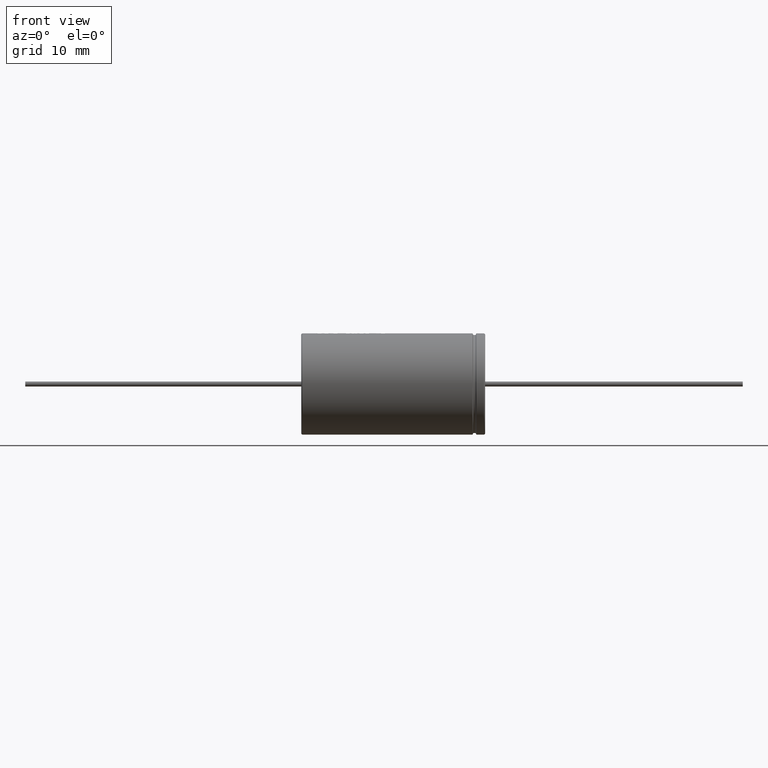
[diagram: clean part render]
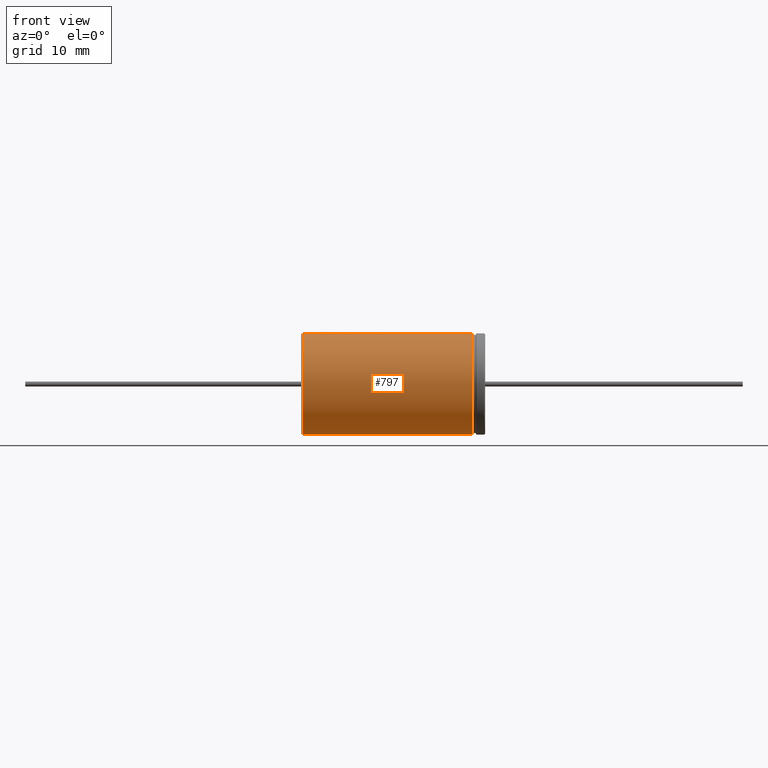
[diagram: same view with one face highlighted and labeled with its STEP entity id]
A machine part, front view. The second image highlights one B-rep face of the part: STEP entity #797.
In plain terms, the highlighted cylindrical surface (partial cylindrical patch) has radius 8.25 mm, axis along (-1, -0, -0).
Its self-contained STEP definition (entity closure, byte-faithful):
#17 = CARTESIAN_POINT ( 'NONE',  ( 8.919766118145515700, -0.4606707589694882800, 8.240348897968690500 ) ) ;
#21 = ORIENTED_EDGE ( 'NONE', *, *, #1786, .F. ) ;
#35 = DIRECTION ( 'NONE',  ( -1.000000000000000000, -0.0000000000000000000, -0.0000000000000000000 ) ) ;
#50 = CARTESIAN_POINT ( 'NONE',  ( 4.587625253583076400, -0.2303430501969473700, 8.249985712090126100 ) ) ;
#64 = VECTOR ( 'NONE', #4262, 1000.000000000000000 ) ;
#66 = B_SPLINE_CURVE_WITH_KNOTS ( 'NONE', 3,
 ( #4678, #3911, #1675, #4659 ),
 .UNSPECIFIED., .F., .F.,
 ( 4, 4 ),
 ( 0.7144272945295489000, 1.000000000000000000 ),
 .UNSPECIFIED. ) ;
#78 = CARTESIAN_POINT ( 'NONE',  ( 12.18413864561811800, -0.2305673614622813200, 8.246777473160550500 ) ) ;
#95 = CARTESIAN_POINT ( 'NONE',  ( 9.934130157072896600, -0.6902269715937691100, 8.221075764623782000 ) ) ;
#108 = VECTOR ( 'NONE', #2012, 1000.000000000000000 ) ;
#121 = CARTESIAN_POINT ( 'NONE',  ( 27.87500000000000000, 0.0000000000000000000, 0.0000000000000000000 ) ) ;
#154 = CARTESIAN_POINT ( 'NONE',  ( 12.75845298491764100, -0.6902269715937543500, 8.221075764623783800 ) ) ;
#155 = DIRECTION ( 'NONE',  ( 1.000000000000000000, 4.032799538137624500E-015, 0.0000000000000000000 ) ) ;
#163 = CARTESIAN_POINT ( 'NONE',  ( 0.2500000000000002200, 1.010333609296566500E-015, -8.250000000000000000 ) ) ;
#165 = CARTESIAN_POINT ( 'NONE',  ( 10.22533386639193700, -0.6902269715937691100, 8.221075764623782000 ) ) ;
#171 = EDGE_CURVE ( 'NONE', #448, #2322, #3681, .T. ) ;
#175 = LINE ( 'NONE', #2812, #3157 ) ;
#186 = VERTEX_POINT ( 'NONE', #2194 ) ;
#213 = VECTOR ( 'NONE', #1646, 1000.000000000000000 ) ;
#218 = CARTESIAN_POINT ( 'NONE',  ( 30.00000000000000000, 0.0000000000000000000, 8.250000000000000000 ) ) ;
#241 = CARTESIAN_POINT ( 'NONE',  ( 2.648952361300336300, -2.040274387893383400E-007, 8.249952698225598600 ) ) ;
#246 = VERTEX_POINT ( 'NONE', #3382 ) ;
#261 = EDGE_CURVE ( 'NONE', #3119, #3043, #2929, .T. ) ;
#275 = EDGE_CURVE ( 'NONE', #2799, #1824, #1015, .T. ) ;
#299 = CARTESIAN_POINT ( 'NONE',  ( 9.934130157072896600, -0.6902269715937691100, 8.221075764623782000 ) ) ;
#330 = CARTESIAN_POINT ( 'NONE',  ( 12.95713338428553000, -6.016835207277681200E-008, 8.249973829097053000 ) ) ;
#349 = B_SPLINE_CURVE_WITH_KNOTS ( 'NONE', 3,
 ( #2220, #17, #3695, #4486 ),
 .UNSPECIFIED., .F., .F.,
 ( 4, 4 ),
 ( 0.0000000000000000000, 0.3192411504329490900 ),
 .UNSPECIFIED. ) ;
#374 = CARTESIAN_POINT ( 'NONE',  ( 13.44773319490491500, -0.6902269715937543500, 8.221075764623783800 ) ) ;
#376 = VECTOR ( 'NONE', #4474, 1000.000000000000000 ) ;
#379 = EDGE_CURVE ( 'NONE', #1709, #1069, #2630, .T. ) ;
#388 = EDGE_CURVE ( 'NONE', #2765, #2581, #566, .T. ) ;
#415 = EDGE_CURVE ( 'NONE', #3232, #3240, #175, .T. ) ;
#416 = CARTESIAN_POINT ( 'NONE',  ( 4.683103742926440400, -0.4606858163384373600, 8.240347633778641900 ) ) ;
#440 = EDGE_CURVE ( 'NONE', #3625, #1162, #1623, .T. ) ;
#448 = VERTEX_POINT ( 'NONE', #615 ) ;
#473 = ORIENTED_EDGE ( 'NONE', *, *, #1922, .F. ) ;
#475 = LINE ( 'NONE', #3221, #3239 ) ;
#506 = AXIS2_PLACEMENT_3D ( 'NONE', #1003, #3288, #652 ) ;
#521 = EDGE_CURVE ( 'NONE', #3043, #905, #1683, .T. ) ;
#535 = CARTESIAN_POINT ( 'NONE',  ( 12.14058805701853000, -0.3839865717740780200, 8.242488105266929200 ) ) ;
#542 = CARTESIAN_POINT ( 'NONE',  ( 2.450360269558703700, -0.6902269715937907600, 8.221075764623778400 ) ) ;
#566 = LINE ( 'NONE', #4632, #739 ) ;
#576 = CARTESIAN_POINT ( 'NONE',  ( 11.11095042167039500, -1.390308746357675100E-010, 8.249999730860338300 ) ) ;
#584 = VERTEX_POINT ( 'NONE', #299 ) ;
#588 = EDGE_CURVE ( 'NONE', #619, #3977, #2244, .T. ) ;
#615 = CARTESIAN_POINT ( 'NONE',  ( 11.04511865939864300, -0.2305673614622886800, 8.246777473160550500 ) ) ;
#619 = VERTEX_POINT ( 'NONE', #3327 ) ;
#620 = CARTESIAN_POINT ( 'NONE',  ( 8.165998987177818700, -0.4606664065882006800, 8.240349263386921300 ) ) ;
#629 = ORIENTED_EDGE ( 'NONE', *, *, #261, .T. ) ;
#652 = DIRECTION ( 'NONE',  ( 0.0000000000000000000, 0.0000000000000000000, 1.000000000000000000 ) ) ;
#654 = EDGE_CURVE ( 'NONE', #186, #246, #822, .T. ) ;
#678 = VERTEX_POINT ( 'NONE', #2550 ) ;
#705 = CIRCLE ( 'NONE', #1611, 8.250000000000000000 ) ;
#730 = VECTOR ( 'NONE', #4536, 1000.000000000000000 ) ;
#733 = VECTOR ( 'NONE', #3640, 1000.000000000000000 ) ;
#739 = VECTOR ( 'NONE', #3575, 1000.000000000000000 ) ;
#743 = ORIENTED_EDGE ( 'NONE', *, *, #275, .F. ) ;
#746 = CARTESIAN_POINT ( 'NONE',  ( 11.11095042167039500, -1.390308746357675100E-010, 8.249999730860338300 ) ) ;
#765 = CARTESIAN_POINT ( 'NONE',  ( 11.04511865939864300, -0.2305673614622886800, 8.246777473160550500 ) ) ;
#780 = CARTESIAN_POINT ( 'NONE',  ( 7.721447949807613400, -0.4606679639884354600, 8.240349132630353100 ) ) ;
#795 = CARTESIAN_POINT ( 'NONE',  ( 9.451547322385771100, -0.2303291673829859800, 8.249954679465158600 ) ) ;
#797 = ADVANCED_FACE ( 'NONE', ( #1367 ), #4584, .T. ) ;
#822 = LINE ( 'NONE', #4008, #4636 ) ;
#824 = DIRECTION ( 'NONE',  ( 1.000000000000000000, 0.0000000000000000000, 0.0000000000000000000 ) ) ;
#848 = CARTESIAN_POINT ( 'NONE',  ( 0.2500000000000002200, 0.0000000000000000000, 8.250000000000000000 ) ) ;
#855 = CARTESIAN_POINT ( 'NONE',  ( 10.06658931763964100, -0.2303215886711342000, 8.249943361317043900 ) ) ;
#856 = EDGE_CURVE ( 'NONE', #1069, #678, #2327, .T. ) ;
#858 = CARTESIAN_POINT ( 'NONE',  ( 30.00000000000000000, 0.0000000000000000000, 8.250000000000000000 ) ) ;
#884 = EDGE_CURVE ( 'NONE', #2581, #246, #349, .T. ) ;
#905 = VERTEX_POINT ( 'NONE', #4096 ) ;
#929 = B_SPLINE_CURVE_WITH_KNOTS ( 'NONE', 3,
 ( #3890, #2341, #535, #3153 ),
 .UNSPECIFIED., .F., .F.,
 ( 4, 4 ),
 ( 0.0000000000000000000, 1.000000000000000000 ),
 .UNSPECIFIED. ) ;
#992 = CARTESIAN_POINT ( 'NONE',  ( 4.042349904458654400, -0.6902269715937817700, 8.221075764623780200 ) ) ;
#1003 = CARTESIAN_POINT ( 'NONE',  ( 30.00000000000000000, 0.0000000000000000000, 0.0000000000000000000 ) ) ;
#1015 = LINE ( 'NONE', #3413, #4022 ) ;
#1039 = AXIS2_PLACEMENT_3D ( 'NONE', #121, #1185, #3803 ) ;
#1069 = VERTEX_POINT ( 'NONE', #1642 ) ;
#1076 = CARTESIAN_POINT ( 'NONE',  ( 12.82468427484701800, -0.4606738494898976500, 8.240348638494067400 ) ) ;
#1097 = CARTESIAN_POINT ( 'NONE',  ( 4.778584689303863300, -0.6902269715937837700, 8.221075764623780200 ) ) ;
#1106 = VECTOR ( 'NONE', #35, 1000.000000000000000 ) ;
#1118 = ORIENTED_EDGE ( 'NONE', *, *, #4250, .F. ) ;
#1124 = EDGE_CURVE ( 'NONE', #4717, #3863, #3759, .T. ) ;
#1152 = CARTESIAN_POINT ( 'NONE',  ( 27.87500000000000000, 0.0000000000000000000, 8.250000000000000000 ) ) ;
#1158 = CARTESIAN_POINT ( 'NONE',  ( 10.13280839674770900, -2.041794404020853200E-007, 8.249952697900440100 ) ) ;
#1162 = VERTEX_POINT ( 'NONE', #1657 ) ;
#1179 = CARTESIAN_POINT ( 'NONE',  ( 5.247396802830460900, -2.044873033689142300E-007, 8.249952697241880600 ) ) ;
#1180 = VERTEX_POINT ( 'NONE', #4260 ) ;
#1185 = DIRECTION ( 'NONE',  ( -1.000000000000000000, -0.0000000000000000000, -0.0000000000000000000 ) ) ;
#1209 = EDGE_CURVE ( 'NONE', #3523, #448, #475, .T. ) ;
#1226 = CARTESIAN_POINT ( 'NONE',  ( 3.764970902322259100, 3.140665345664115500E-009, 8.249993344650970800 ) ) ;
#1235 = EDGE_CURVE ( 'NONE', #4667, #4142, #705, .T. ) ;
#1239 = ORIENTED_EDGE ( 'NONE', *, *, #856, .F. ) ;
#1260 = B_SPLINE_CURVE_WITH_KNOTS ( 'NONE', 3,
 ( #2987, #780, #2973, #1490 ),
 .UNSPECIFIED., .F., .F.,
 ( 4, 4 ),
 ( 0.0000000000000000000, 0.3207775540200901700 ),
 .UNSPECIFIED. ) ;
#1315 = CARTESIAN_POINT ( 'NONE',  ( 8.178910188371727200, -0.2303282209134474300, 8.249955426023346300 ) ) ;
#1342 = CARTESIAN_POINT ( 'NONE',  ( 4.042349904458654400, -0.6902269715937817700, 8.221075764623780200 ) ) ;
#1350 = CARTESIAN_POINT ( 'NONE',  ( 10.13280839674770900, -2.041794404020853200E-007, 8.249952697900440100 ) ) ;
#1359 = ORIENTED_EDGE ( 'NONE', *, *, #3114, .F. ) ;
#1365 = ORIENTED_EDGE ( 'NONE', *, *, #388, .F. ) ;
#1367 = FACE_OUTER_BOUND ( 'NONE', #1923, .T. ) ;
#1455 = CARTESIAN_POINT ( 'NONE',  ( 11.08900651105086300, -0.07686576069029831000, 8.249999597373950200 ) ) ;
#1490 = CARTESIAN_POINT ( 'NONE',  ( 7.853719569700832200, -1.090947509234515800E-007, 8.249965338413145900 ) ) ;
#1502 = ORIENTED_EDGE ( 'NONE', *, *, #440, .F. ) ;
#1507 = ORIENTED_EDGE ( 'NONE', *, *, #2228, .F. ) ;
#1552 = CARTESIAN_POINT ( 'NONE',  ( 10.00036503480312400, -0.4606583884373220400, 8.240349936576677700 ) ) ;
#1611 = AXIS2_PLACEMENT_3D ( 'NONE', #2076, #2458, #2829 ) ;
#1623 = LINE ( 'NONE', #1658, #64 ) ;
#1641 = ORIENTED_EDGE ( 'NONE', *, *, #3643, .F. ) ;
#1642 = CARTESIAN_POINT ( 'NONE',  ( 4.778584689303863300, -0.6902269715937837700, 8.221075764623780200 ) ) ;
#1646 = DIRECTION ( 'NONE',  ( 1.000000000000000000, 1.686596695041101600E-014, 0.0000000000000000000 ) ) ;
#1657 = CARTESIAN_POINT ( 'NONE',  ( 7.224603980983963500, -0.6902269715937764400, 8.221075764623782000 ) ) ;
#1658 = CARTESIAN_POINT ( 'NONE',  ( 5.048544165565341600, -0.6902269715937837700, 8.221075764623780200 ) ) ;
#1675 = CARTESIAN_POINT ( 'NONE',  ( 5.114837182492008700, -0.4606583921906659600, 8.240349936261555500 ) ) ;
#1683 = LINE ( 'NONE', #218, #733 ) ;
#1696 = CARTESIAN_POINT ( 'NONE',  ( 2.450360269558703700, -0.6902269715937907600, 8.221075764623778400 ) ) ;
#1709 = VERTEX_POINT ( 'NONE', #992 ) ;
#1723 = LINE ( 'NONE', #2593, #376 ) ;
#1742 = CARTESIAN_POINT ( 'NONE',  ( 3.204434602854049800, -0.4606855103833825100, 8.240347659466088700 ) ) ;
#1752 = CARTESIAN_POINT ( 'NONE',  ( 13.51394538818733400, -0.4606738488442764200, 8.240348638548272900 ) ) ;
#1762 = ORIENTED_EDGE ( 'NONE', *, *, #2893, .T. ) ;
#1766 = LINE ( 'NONE', #165, #4511 ) ;
#1785 = CARTESIAN_POINT ( 'NONE',  ( 12.75845298491764100, -0.6902269715937543500, 8.221075764623783800 ) ) ;
#1786 = EDGE_CURVE ( 'NONE', #2110, #3910, #1766, .T. ) ;
#1812 = CARTESIAN_POINT ( 'NONE',  ( 30.00000000000000000, 0.0000000000000000000, 8.250000000000000000 ) ) ;
#1824 = VERTEX_POINT ( 'NONE', #2709 ) ;
#1831 = ORIENTED_EDGE ( 'NONE', *, *, #379, .F. ) ;
#1850 = CARTESIAN_POINT ( 'NONE',  ( 9.517690233111123300, -1.121440179989097400E-007, 8.249964874664414100 ) ) ;
#1878 = CARTESIAN_POINT ( 'NONE',  ( 10.42410035572401800, -2.043352068930923100E-007, 8.249952697567245300 ) ) ;
#1918 = B_SPLINE_CURVE_WITH_KNOTS ( 'NONE', 3,
 ( #1878, #3758, #4523, #3081 ),
 .UNSPECIFIED., .F., .F.,
 ( 4, 4 ),
 ( 0.7144272953792758500, 1.000000000000000000 ),
 .UNSPECIFIED. ) ;
#1922 = EDGE_CURVE ( 'NONE', #2044, #2765, #2205, .T. ) ;
#1923 = EDGE_LOOP ( 'NONE', ( #3155, #629, #4563, #2000, #4735, #2890, #1762, #3905, #2207, #1641, #21, #2161, #3908, #1507, #1359, #3550, #4725, #3449, #1365, #473, #2342, #2169, #3452, #1502, #4323, #2047, #1239, #1831, #1996, #3780, #3167, #743, #1118, #2378, #3062 ) ) ;
#1996 = ORIENTED_EDGE ( 'NONE', *, *, #2325, .F. ) ;
#2000 = ORIENTED_EDGE ( 'NONE', *, *, #2450, .F. ) ;
#2006 = CARTESIAN_POINT ( 'NONE',  ( 2.582761995549668100, -0.2303215871285075600, 8.249943361715352800 ) ) ;
#2012 = DIRECTION ( 'NONE',  ( -1.000000000000000000, -0.0000000000000000000, -0.0000000000000000000 ) ) ;
#2044 = VERTEX_POINT ( 'NONE', #3686 ) ;
#2045 = DIRECTION ( 'NONE',  ( -1.000000000000000000, -0.0000000000000000000, -0.0000000000000000000 ) ) ;
#2047 = ORIENTED_EDGE ( 'NONE', *, *, #2473, .T. ) ;
#2064 = DIRECTION ( 'NONE',  ( 1.000000000000000000, 0.0000000000000000000, 0.0000000000000000000 ) ) ;
#2076 = CARTESIAN_POINT ( 'NONE',  ( 0.2500000000000002200, 0.0000000000000000000, 0.0000000000000000000 ) ) ;
#2082 = CARTESIAN_POINT ( 'NONE',  ( 8.191820741618196100, -1.142971456029781600E-008, 8.249965567787858900 ) ) ;
#2087 = LINE ( 'NONE', #2571, #1106 ) ;
#2101 = EDGE_CURVE ( 'NONE', #3977, #2464, #4227, .T. ) ;
#2110 = VERTEX_POINT ( 'NONE', #2231 ) ;
#2120 = CARTESIAN_POINT ( 'NONE',  ( 10.42410035572401800, -2.043352068930923100E-007, 8.249952697567245300 ) ) ;
#2161 = ORIENTED_EDGE ( 'NONE', *, *, #3027, .F. ) ;
#2169 = ORIENTED_EDGE ( 'NONE', *, *, #2612, .F. ) ;
#2194 = CARTESIAN_POINT ( 'NONE',  ( 9.517690233111123300, -1.121440179989097400E-007, 8.249964874664414100 ) ) ;
#2205 = B_SPLINE_CURVE_WITH_KNOTS ( 'NONE', 3,
 ( #2082, #1315, #620, #3195 ),
 .UNSPECIFIED., .F., .F.,
 ( 4, 4 ),
 ( 0.6792230329231616600, 1.000000000000000000 ),
 .UNSPECIFIED. ) ;
#2207 = ORIENTED_EDGE ( 'NONE', *, *, #1209, .F. ) ;
#2220 = CARTESIAN_POINT ( 'NONE',  ( 8.798156111622805800, -0.6902269715937691100, 8.221075764623782000 ) ) ;
#2228 = EDGE_CURVE ( 'NONE', #584, #3240, #4582, .T. ) ;
#2231 = CARTESIAN_POINT ( 'NONE',  ( 10.22533386639193700, -0.6902269715937691100, 8.221075764623782000 ) ) ;
#2244 = B_SPLINE_CURVE_WITH_KNOTS ( 'NONE', 3,
 ( #330, #3990, #1076, #3654 ),
 .UNSPECIFIED., .F., .F.,
 ( 4, 4 ),
 ( 0.6460816708775798400, 1.000000000000000000 ),
 .UNSPECIFIED. ) ;
#2253 = CARTESIAN_POINT ( 'NONE',  ( 7.853719569700832200, -1.090947509234515800E-007, 8.249965338413145900 ) ) ;
#2272 = B_SPLINE_CURVE_WITH_KNOTS ( 'NONE', 3,
 ( #1850, #795, #4472, #3729 ),
 .UNSPECIFIED., .F., .F.,
 ( 4, 4 ),
 ( 0.6807600417059137500, 1.000000000000000000 ),
 .UNSPECIFIED. ) ;
#2315 = EDGE_CURVE ( 'NONE', #4182, #4667, #2433, .T. ) ;
#2318 = CARTESIAN_POINT ( 'NONE',  ( 7.655302948734274100, -0.6902269715937691100, 8.221075764623782000 ) ) ;
#2322 = VERTEX_POINT ( 'NONE', #576 ) ;
#2325 = EDGE_CURVE ( 'NONE', #4717, #1709, #2729, .T. ) ;
#2327 = B_SPLINE_CURVE_WITH_KNOTS ( 'NONE', 3,
 ( #1097, #416, #50, #2984 ),
 .UNSPECIFIED., .F., .F.,
 ( 4, 4 ),
 ( 0.0000000000000000000, 0.5259696603913501800 ),
 .UNSPECIFIED. ) ;
#2339 = CARTESIAN_POINT ( 'NONE',  ( 30.00000000000000000, 0.0000000000000000000, 8.250000000000000000 ) ) ;
#2341 = CARTESIAN_POINT ( 'NONE',  ( 12.09703750430132100, -0.5372859039067911000, 8.233916425992717300 ) ) ;
#2342 = ORIENTED_EDGE ( 'NONE', *, *, #3541, .T. ) ;
#2378 = ORIENTED_EDGE ( 'NONE', *, *, #2315, .T. ) ;
#2388 = CARTESIAN_POINT ( 'NONE',  ( 3.764970902322259100, 3.140665345664115500E-009, 8.249993344650970800 ) ) ;
#2433 = LINE ( 'NONE', #2339, #108 ) ;
#2441 = DIRECTION ( 'NONE',  ( -1.000000000000000000, -0.0000000000000000000, -0.0000000000000000000 ) ) ;
#2443 = CARTESIAN_POINT ( 'NONE',  ( 8.153086186862863000, -0.6902269715937691100, 8.221075764623782000 ) ) ;
#2450 = EDGE_CURVE ( 'NONE', #2464, #905, #3794, .T. ) ;
#2458 = DIRECTION ( 'NONE',  ( 1.000000000000000000, 0.0000000000000000000, 0.0000000000000000000 ) ) ;
#2464 = VERTEX_POINT ( 'NONE', #4759 ) ;
#2473 = EDGE_CURVE ( 'NONE', #3095, #678, #2087, .T. ) ;
#2499 = VECTOR ( 'NONE', #2064, 1000.000000000000000 ) ;
#2505 = EDGE_CURVE ( 'NONE', #186, #1180, #2272, .T. ) ;
#2530 = DIRECTION ( 'NONE',  ( -1.000000000000000000, -0.0000000000000000000, -0.0000000000000000000 ) ) ;
#2550 = CARTESIAN_POINT ( 'NONE',  ( 4.492146628738978200, 3.316005184415132800E-009, 8.249993342761177600 ) ) ;
#2571 = CARTESIAN_POINT ( 'NONE',  ( 30.00000000000000000, 0.0000000000000000000, 8.250000000000000000 ) ) ;
#2581 = VERTEX_POINT ( 'NONE', #4421 ) ;
#2593 = CARTESIAN_POINT ( 'NONE',  ( 30.00000000000000000, 1.010333609296566500E-015, -8.250000000000000000 ) ) ;
#2612 = EDGE_CURVE ( 'NONE', #3964, #2996, #1260, .T. ) ;
#2630 = LINE ( 'NONE', #3940, #2499 ) ;
#2638 = CARTESIAN_POINT ( 'NONE',  ( 12.05348691570173300, -0.6902269715937617800, 8.221075764623782000 ) ) ;
#2708 = EDGE_CURVE ( 'NONE', #1162, #3964, #4229, .T. ) ;
#2709 = CARTESIAN_POINT ( 'NONE',  ( 3.138411801012507100, -0.6902269715937909800, 8.221075764623780200 ) ) ;
#2729 = B_SPLINE_CURVE_WITH_KNOTS ( 'NONE', 3,
 ( #2388, #3088, #3562, #1342 ),
 .UNSPECIFIED., .F., .F.,
 ( 4, 4 ),
 ( 0.4740303379863712900, 1.000000000000000000 ),
 .UNSPECIFIED. ) ;
#2765 = VERTEX_POINT ( 'NONE', #2443 ) ;
#2799 = VERTEX_POINT ( 'NONE', #1696 ) ;
#2812 = CARTESIAN_POINT ( 'NONE',  ( 30.00000000000000000, 0.0000000000000000000, 8.250000000000000000 ) ) ;
#2829 = DIRECTION ( 'NONE',  ( 0.0000000000000000000, 0.0000000000000000000, -1.000000000000000000 ) ) ;
#2890 = ORIENTED_EDGE ( 'NONE', *, *, #588, .F. ) ;
#2893 = EDGE_CURVE ( 'NONE', #619, #2322, #3674, .T. ) ;
#2927 = CARTESIAN_POINT ( 'NONE',  ( 3.336476637829846900, 1.741093252861578000E-009, 8.249993359719828900 ) ) ;
#2929 = CIRCLE ( 'NONE', #1039, 8.250000000000000000 ) ;
#2973 = CARTESIAN_POINT ( 'NONE',  ( 7.787585307715791500, -0.2303294376654971800, 8.249955123341960600 ) ) ;
#2984 = CARTESIAN_POINT ( 'NONE',  ( 4.492146628738978200, 3.316005184415132800E-009, 8.249993342761177600 ) ) ;
#2987 = CARTESIAN_POINT ( 'NONE',  ( 7.655302948734274100, -0.6902269715937691100, 8.221075764623782000 ) ) ;
#2996 = VERTEX_POINT ( 'NONE', #2253 ) ;
#3027 = EDGE_CURVE ( 'NONE', #3232, #2110, #1918, .T. ) ;
#3043 = VERTEX_POINT ( 'NONE', #1152 ) ;
#3062 = ORIENTED_EDGE ( 'NONE', *, *, #1235, .T. ) ;
#3081 = CARTESIAN_POINT ( 'NONE',  ( 10.22533386639193700, -0.6902269715937691100, 8.221075764623782000 ) ) ;
#3088 = CARTESIAN_POINT ( 'NONE',  ( 3.857429857776469600, -0.2303430346955462100, 8.249985716136075500 ) ) ;
#3095 = VERTEX_POINT ( 'NONE', #1179 ) ;
#3114 = EDGE_CURVE ( 'NONE', #1180, #584, #4424, .T. ) ;
#3119 = VERTEX_POINT ( 'NONE', #4757 ) ;
#3153 = CARTESIAN_POINT ( 'NONE',  ( 12.18413864561811800, -0.2305673614622813200, 8.246777473160550500 ) ) ;
#3155 = ORIENTED_EDGE ( 'NONE', *, *, #3949, .F. ) ;
#3157 = VECTOR ( 'NONE', #2441, 1000.000000000000000 ) ;
#3167 = ORIENTED_EDGE ( 'NONE', *, *, #3297, .F. ) ;
#3195 = CARTESIAN_POINT ( 'NONE',  ( 8.153086186862863000, -0.6902269715937691100, 8.221075764623782000 ) ) ;
#3201 = VECTOR ( 'NONE', #3418, 1000.000000000000000 ) ;
#3221 = CARTESIAN_POINT ( 'NONE',  ( 12.18413864561811800, -0.2305673614622813200, 8.246777473160550500 ) ) ;
#3232 = VERTEX_POINT ( 'NONE', #2120 ) ;
#3239 = VECTOR ( 'NONE', #3557, 1000.000000000000000 ) ;
#3240 = VERTEX_POINT ( 'NONE', #1350 ) ;
#3275 = CARTESIAN_POINT ( 'NONE',  ( 13.58015179243798600, -0.2303341439387353300, 8.249963469608790200 ) ) ;
#3288 = DIRECTION ( 'NONE',  ( -1.000000000000000000, -0.0000000000000000000, -0.0000000000000000000 ) ) ;
#3297 = EDGE_CURVE ( 'NONE', #1824, #3863, #3652, .T. ) ;
#3321 = B_SPLINE_CURVE_WITH_KNOTS ( 'NONE', 3,
 ( #241, #2006, #4601, #542 ),
 .UNSPECIFIED., .F., .F.,
 ( 4, 4 ),
 ( 0.7144272970986205200, 1.000000000000000000 ),
 .UNSPECIFIED. ) ;
#3327 = CARTESIAN_POINT ( 'NONE',  ( 12.95713338428553000, -6.016835207277681200E-008, 8.249973829097053000 ) ) ;
#3382 = CARTESIAN_POINT ( 'NONE',  ( 9.162956695892271200, -3.092285029584844700E-007, 8.249964410197906200 ) ) ;
#3413 = CARTESIAN_POINT ( 'NONE',  ( 2.450360269558703700, -0.6902269715937909800, 8.221075764623780200 ) ) ;
#3418 = DIRECTION ( 'NONE',  ( -1.000000000000000000, -0.0000000000000000000, -0.0000000000000000000 ) ) ;
#3449 = ORIENTED_EDGE ( 'NONE', *, *, #884, .F. ) ;
#3452 = ORIENTED_EDGE ( 'NONE', *, *, #2708, .F. ) ;
#3477 = CARTESIAN_POINT ( 'NONE',  ( 7.224603980983963500, -0.6902269715937764400, 8.221075764623782000 ) ) ;
#3523 = VERTEX_POINT ( 'NONE', #78 ) ;
#3541 = EDGE_CURVE ( 'NONE', #2044, #2996, #3829, .T. ) ;
#3550 = ORIENTED_EDGE ( 'NONE', *, *, #2505, .F. ) ;
#3557 = DIRECTION ( 'NONE',  ( -1.000000000000000000, -6.448938392178403600E-015, 0.0000000000000000000 ) ) ;
#3562 = CARTESIAN_POINT ( 'NONE',  ( 3.949888680844222400, -0.4606857822441157700, 8.240347636641141400 ) ) ;
#3575 = DIRECTION ( 'NONE',  ( 1.000000000000000000, 0.0000000000000000000, 0.0000000000000000000 ) ) ;
#3608 = DIRECTION ( 'NONE',  ( -1.000000000000000000, -0.0000000000000000000, -0.0000000000000000000 ) ) ;
#3625 = VERTEX_POINT ( 'NONE', #4585 ) ;
#3640 = DIRECTION ( 'NONE',  ( -1.000000000000000000, -0.0000000000000000000, -0.0000000000000000000 ) ) ;
#3643 = EDGE_CURVE ( 'NONE', #3910, #3523, #929, .T. ) ;
#3652 = B_SPLINE_CURVE_WITH_KNOTS ( 'NONE', 3,
 ( #3971, #1742, #4038, #2927 ),
 .UNSPECIFIED., .F., .F.,
 ( 4, 4 ),
 ( 0.0000000000000000000, 0.5259696749472333500 ),
 .UNSPECIFIED. ) ;
#3654 = CARTESIAN_POINT ( 'NONE',  ( 12.75845298491764100, -0.6902269715937543500, 8.221075764623783800 ) ) ;
#3674 = LINE ( 'NONE', #1812, #3787 ) ;
#3681 = B_SPLINE_CURVE_WITH_KNOTS ( 'NONE', 3,
 ( #765, #4404, #1455, #746 ),
 .UNSPECIFIED., .F., .F.,
 ( 4, 4 ),
 ( 0.0000000000000000000, 0.3834973382885075700 ),
 .UNSPECIFIED. ) ;
#3686 = CARTESIAN_POINT ( 'NONE',  ( 8.191820741618196100, -1.142971456029781600E-008, 8.249965567787858900 ) ) ;
#3695 = CARTESIAN_POINT ( 'NONE',  ( 9.041363903248015500, -0.2303316176481608700, 8.249954068656935000 ) ) ;
#3729 = CARTESIAN_POINT ( 'NONE',  ( 9.319247418248760800, -0.6902269715937691100, 8.221075764623782000 ) ) ;
#3758 = CARTESIAN_POINT ( 'NONE',  ( 10.35785186274727100, -0.2303215902519140400, 8.249943360908883200 ) ) ;
#3759 = LINE ( 'NONE', #3893, #3867 ) ;
#3780 = ORIENTED_EDGE ( 'NONE', *, *, #1124, .T. ) ;
#3781 = CARTESIAN_POINT ( 'NONE',  ( 9.319247418248760800, -0.6902269715937691100, 8.221075764623782000 ) ) ;
#3787 = VECTOR ( 'NONE', #3608, 1000.000000000000000 ) ;
#3794 = B_SPLINE_CURVE_WITH_KNOTS ( 'NONE', 3,
 ( #374, #1752, #3275, #3997 ),
 .UNSPECIFIED., .F., .F.,
 ( 4, 4 ),
 ( 0.0000000000000000000, 0.3539183289281714900 ),
 .UNSPECIFIED. ) ;
#3803 = DIRECTION ( 'NONE',  ( 0.0000000000000000000, 0.0000000000000000000, -1.000000000000000000 ) ) ;
#3829 = LINE ( 'NONE', #858, #3201 ) ;
#3863 = VERTEX_POINT ( 'NONE', #4032 ) ;
#3867 = VECTOR ( 'NONE', #2045, 1000.000000000000000 ) ;
#3890 = CARTESIAN_POINT ( 'NONE',  ( 12.05348691570173300, -0.6902269715937617800, 8.221075764623782000 ) ) ;
#3893 = CARTESIAN_POINT ( 'NONE',  ( 30.00000000000000000, 0.0000000000000000000, 8.250000000000000000 ) ) ;
#3905 = ORIENTED_EDGE ( 'NONE', *, *, #171, .F. ) ;
#3908 = ORIENTED_EDGE ( 'NONE', *, *, #415, .T. ) ;
#3910 = VERTEX_POINT ( 'NONE', #2638 ) ;
#3911 = CARTESIAN_POINT ( 'NONE',  ( 5.181119596495362200, -0.2303215917955370700, 8.249943360510318500 ) ) ;
#3940 = CARTESIAN_POINT ( 'NONE',  ( 4.042349904458654400, -0.6902269715937837700, 8.221075764623780200 ) ) ;
#3949 = EDGE_CURVE ( 'NONE', #3119, #4142, #1723, .T. ) ;
#3964 = VERTEX_POINT ( 'NONE', #2318 ) ;
#3971 = CARTESIAN_POINT ( 'NONE',  ( 3.138411801012507100, -0.6902269715937909800, 8.221075764623780200 ) ) ;
#3977 = VERTEX_POINT ( 'NONE', #154 ) ;
#3990 = CARTESIAN_POINT ( 'NONE',  ( 12.89090977431150600, -0.2303341444114807800, 8.249963469493847500 ) ) ;
#3997 = CARTESIAN_POINT ( 'NONE',  ( 13.64635630766555600, -6.013810065349459900E-008, 8.249973829178140200 ) ) ;
#4008 = CARTESIAN_POINT ( 'NONE',  ( 30.00000000000000000, 0.0000000000000000000, 8.250000000000000000 ) ) ;
#4022 = VECTOR ( 'NONE', #824, 1000.000000000000000 ) ;
#4032 = CARTESIAN_POINT ( 'NONE',  ( 3.336476637829846900, 1.741093252861578000E-009, 8.249993359719828900 ) ) ;
#4038 = CARTESIAN_POINT ( 'NONE',  ( 3.270455569741769400, -0.2303429110922271500, 8.249985748397637800 ) ) ;
#4096 = CARTESIAN_POINT ( 'NONE',  ( 13.64635630766555600, -6.013810065349459900E-008, 8.249973829178140200 ) ) ;
#4142 = VERTEX_POINT ( 'NONE', #163 ) ;
#4182 = VERTEX_POINT ( 'NONE', #4634 ) ;
#4227 = LINE ( 'NONE', #1785, #4278 ) ;
#4229 = LINE ( 'NONE', #3477, #213 ) ;
#4250 = EDGE_CURVE ( 'NONE', #4182, #2799, #3321, .T. ) ;
#4260 = CARTESIAN_POINT ( 'NONE',  ( 9.319247418248760800, -0.6902269715937691100, 8.221075764623782000 ) ) ;
#4262 = DIRECTION ( 'NONE',  ( 1.000000000000000000, 3.388038656227435200E-015, 7.971855661711611900E-016 ) ) ;
#4278 = VECTOR ( 'NONE', #4396, 1000.000000000000000 ) ;
#4318 = EDGE_CURVE ( 'NONE', #3095, #3625, #66, .T. ) ;
#4323 = ORIENTED_EDGE ( 'NONE', *, *, #4318, .F. ) ;
#4396 = DIRECTION ( 'NONE',  ( 1.000000000000000000, 0.0000000000000000000, 0.0000000000000000000 ) ) ;
#4404 = CARTESIAN_POINT ( 'NONE',  ( 11.06706259526741600, -0.1537315369010777400, 8.248925686010057500 ) ) ;
#4421 = CARTESIAN_POINT ( 'NONE',  ( 8.798156111622805800, -0.6902269715937691100, 8.221075764623782000 ) ) ;
#4424 = LINE ( 'NONE', #3781, #730 ) ;
#4472 = CARTESIAN_POINT ( 'NONE',  ( 9.385401244454111900, -0.4606676300013899900, 8.240349160671314600 ) ) ;
#4474 = DIRECTION ( 'NONE',  ( -1.000000000000000000, -0.0000000000000000000, -0.0000000000000000000 ) ) ;
#4486 = CARTESIAN_POINT ( 'NONE',  ( 9.162956695892271200, -3.092285029584844700E-007, 8.249964410197906200 ) ) ;
#4511 = VECTOR ( 'NONE', #155, 1000.000000000000000 ) ;
#4523 = CARTESIAN_POINT ( 'NONE',  ( 10.29159816404824200, -0.4606583903363074600, 8.240349936417242600 ) ) ;
#4536 = DIRECTION ( 'NONE',  ( 1.000000000000000000, 0.0000000000000000000, 0.0000000000000000000 ) ) ;
#4563 = ORIENTED_EDGE ( 'NONE', *, *, #521, .T. ) ;
#4582 = B_SPLINE_CURVE_WITH_KNOTS ( 'NONE', 3,
 ( #95, #1552, #855, #1158 ),
 .UNSPECIFIED., .F., .F.,
 ( 4, 4 ),
 ( 0.0000000000000000000, 0.2855727037505534400 ),
 .UNSPECIFIED. ) ;
#4584 = CYLINDRICAL_SURFACE ( 'NONE', #506, 8.250000000000000000 ) ;
#4585 = CARTESIAN_POINT ( 'NONE',  ( 5.048544165565341600, -0.6902269715937837700, 8.221075764623780200 ) ) ;
#4601 = CARTESIAN_POINT ( 'NONE',  ( 2.516566428017273300, -0.4606583865841700200, 8.240349936732265200 ) ) ;
#4632 = CARTESIAN_POINT ( 'NONE',  ( 8.153086186862863000, -0.6902269715937691100, 8.221075764623782000 ) ) ;
#4634 = CARTESIAN_POINT ( 'NONE',  ( 2.648952361300336300, -2.040274387893383400E-007, 8.249952698225598600 ) ) ;
#4636 = VECTOR ( 'NONE', #2530, 1000.000000000000000 ) ;
#4659 = CARTESIAN_POINT ( 'NONE',  ( 5.048544165565341600, -0.6902269715937837700, 8.221075764623780200 ) ) ;
#4667 = VERTEX_POINT ( 'NONE', #848 ) ;
#4678 = CARTESIAN_POINT ( 'NONE',  ( 5.247396802830460900, -2.044873033689142300E-007, 8.249952697241880600 ) ) ;
#4717 = VERTEX_POINT ( 'NONE', #1226 ) ;
#4725 = ORIENTED_EDGE ( 'NONE', *, *, #654, .T. ) ;
#4735 = ORIENTED_EDGE ( 'NONE', *, *, #2101, .F. ) ;
#4757 = CARTESIAN_POINT ( 'NONE',  ( 27.87500000000000000, 1.010333609296566500E-015, -8.250000000000000000 ) ) ;
#4759 = CARTESIAN_POINT ( 'NONE',  ( 13.44773319490491500, -0.6902269715937543500, 8.221075764623783800 ) ) ;